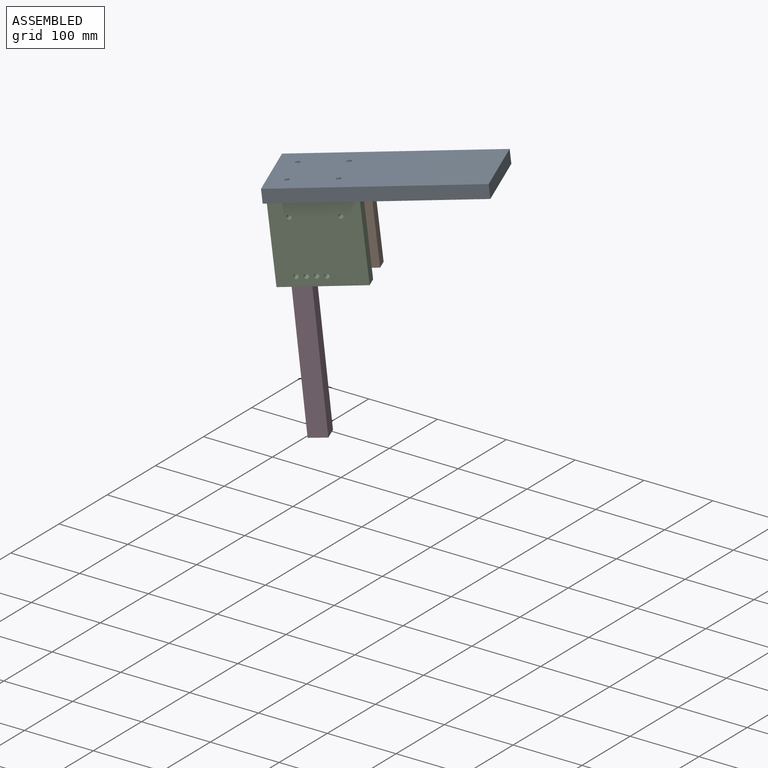
[diagram: assembled view]
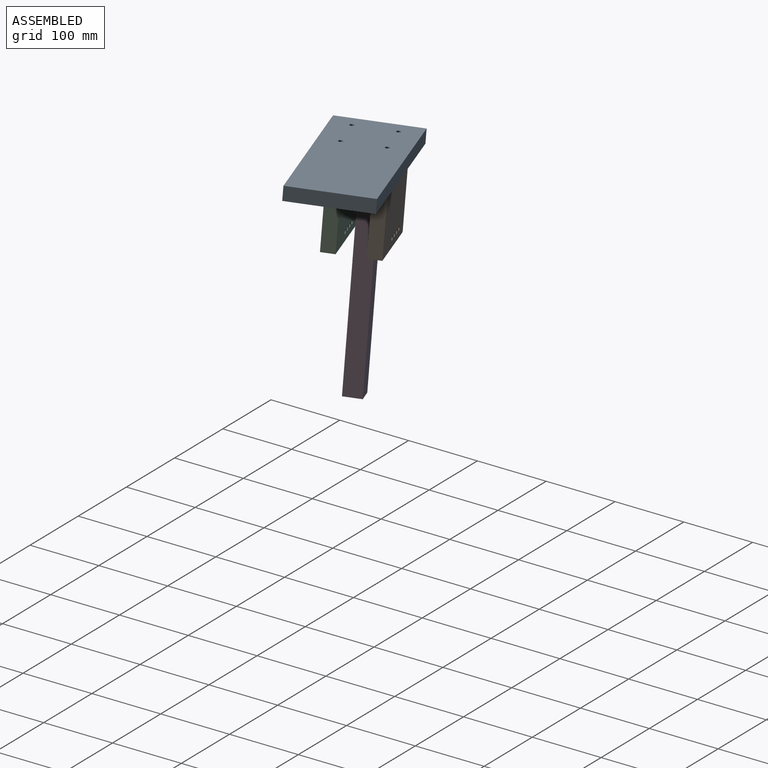
[diagram: assembled view, second angle]
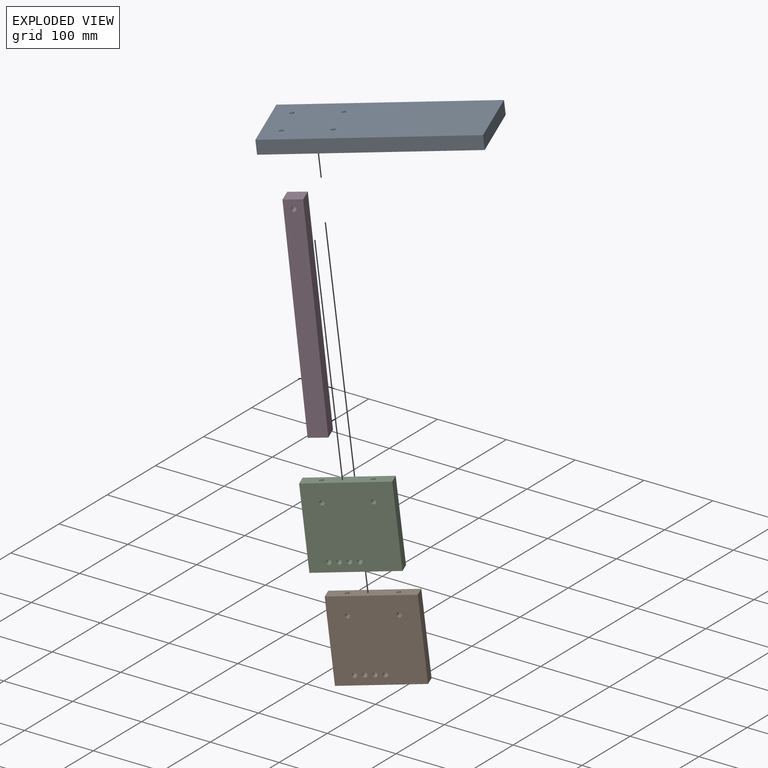
[diagram: exploded view]
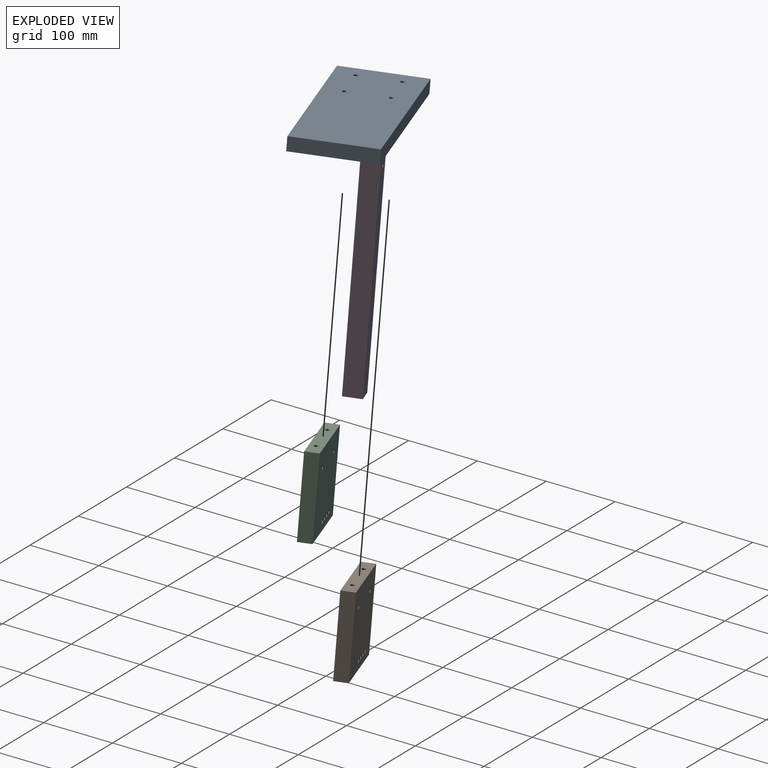
[diagram: exploded view, second angle]
ASSEMBLY  parts=4 mates=7
PART A: 10 faces, bbox 279.4x114.3x19.1 mm
  f0: plane 114.3x19.05mm, normal (-1,0,0), area 2177.4mm2, adj f1,f7,f8,f9
  f1: plane 279.4x19.05mm, normal (0,-1,0), area 5322.6mm2, adj f0,f2,f8,f9
  f2: plane 114.3x19.05mm, normal (1,0,0), area 2177.4mm2, adj f1,f7,f8,f9
  f3: cylinder r=3.17mm len=19.05mm, axis (0,0,-1), area 380mm2, adj f8,f9
  f4: cylinder r=3.17mm len=19.05mm, axis (0,0,-1), area 380mm2, adj f8,f9
  f5: cylinder r=3.17mm len=19.05mm, axis (0,0,-1), area 380mm2, adj f8,f9
  f6: cylinder r=3.17mm len=19.05mm, axis (0,0,-1), area 380mm2, adj f8,f9
  f7: plane 279.4x19.05mm, normal (0,1,0), area 5322.6mm2, adj f0,f2,f8,f9
  f8: plane 279.4x114.3mm, normal (0,0,1), area 31808.7mm2, adj f0,f1,f2,f3,f4,f5,f6,f7
  f9: plane 279.4x114.3mm, normal (0,0,-1), area 31808.7mm2, adj f0,f1,f2,f3,f4,f5,f6,f7
PART B: 14 faces, bbox 114.3x19.1x114.3 mm
  f0: plane 114.3x19.05mm, normal (0,0,1), area 2114.1mm2, adj f1,f3,f4,f5,f6,f7
  f1: plane 114.3x19.05mm, normal (-1,0,0), area 2177.4mm2, adj f0,f2,f4,f5
  f2: plane 114.3x19.05mm, normal (0,0,-1), area 2177.4mm2, adj f1,f3,f4,f5
  f3: plane 114.3x19.05mm, normal (1,0,0), area 2177.4mm2, adj f0,f2,f4,f5
  f4: plane 114.3x114.3mm, normal (0,-1,0), area 12874.5mm2, adj f0,f1,f2,f3,f8,f9,f10,f11
  f5: plane 114.3x114.3mm, normal (0,1,0), area 12874.5mm2, adj f0,f1,f2,f3,f8,f9,f10,f11
  f6: cylinder r=3.17mm len=25.4mm, axis (0,0,1), area 466.4mm2, adj f0,f9
  f7: cylinder r=3.17mm len=25.4mm, axis (0,0,1), area 466.4mm2, adj f0,f8
  f8: cylinder r=3.17mm len=19.05mm, axis (0,1,0), area 339.7mm2, adj f4,f5,f7
  f9: cylinder r=3.17mm len=19.05mm, axis (0,1,0), area 339.7mm2, adj f4,f5,f6
  f10: cylinder r=3.17mm len=19.05mm, axis (0,1,0), area 380mm2, adj f4,f5
  f11: cylinder r=3.17mm len=19.05mm, axis (0,1,0), area 380mm2, adj f4,f5
  f12: cylinder r=3.17mm len=19.05mm, axis (0,1,0), area 380mm2, adj f4,f5
  f13: cylinder r=3.17mm len=19.05mm, axis (0,1,0), area 380mm2, adj f4,f5
PART C: same geometry as B
PART D: 7 faces, bbox 25.4x304.8x25.4 mm
  f0: plane 25.4x25.4mm, normal (0,1,0), area 645.2mm2, adj f1,f4,f5,f6
  f1: plane 304.8x25.4mm, normal (-1,0,0), area 7741.9mm2, adj f0,f2,f5,f6
  f2: plane 25.4x25.4mm, normal (0,-1,0), area 645.2mm2, adj f1,f4,f5,f6
  f3: cylinder r=3.17mm len=25.4mm, axis (0,0,-1), area 506.7mm2, adj f5,f6
  f4: plane 304.8x25.4mm, normal (1,0,0), area 7741.9mm2, adj f0,f2,f5,f6
  f5: plane 304.8x25.4mm, normal (0,0,1), area 7710.3mm2, adj f0,f1,f2,f3,f4
  f6: plane 304.8x25.4mm, normal (0,0,-1), area 7710.3mm2, adj f0,f1,f2,f3,f4
PLACE A rot(axis=(0.98,0.19,0.06),178.5deg) t=(89.68,35.18,267.47)mm fixed
PLACE B rot(axis=(-0.06,-0.31,0.95),23.7deg) t=(9.57,38.76,180.05)mm
PLACE C rot(axis=(-0.06,-0.31,0.95),23.7deg) t=(31.28,-14.03,182.91)mm
PLACE D rot(axis=(-0.96,-0.25,0.13),93.9deg) t=(36.21,-10.6,82.05)mm
MATE planar C.f7 <-> A.f5  axis (-0.13,0,0.99) through (-1.65,-34.99,236.21)mm
MATE planar D.f3 <-> C.f8  axis (0.38,-0.92,0.05) through (-4.36,-20.33,210.24)mm
MATE planar B.f7 <-> A.f3  axis (-0.13,0,0.99) through (-23.36,17.8,233.35)mm
MATE cylindrical B.f7 <-> A.f3  axis (-0.13,0,0.99) through (-23.36,17.8,233.35)mm
MATE cylindrical C.f7 <-> A.f5  axis (-0.13,0,0.99) through (-1.65,-34.99,236.21)mm
MATE cylindrical B.f6 <-> A.f4  axis (-0.13,0,0.99) through (34.8,42.12,241.02)mm
MATE cylindrical B.f8 <-> D.f3  axis (0.38,-0.92,0.05) through (-16.42,9,208.65)mm
